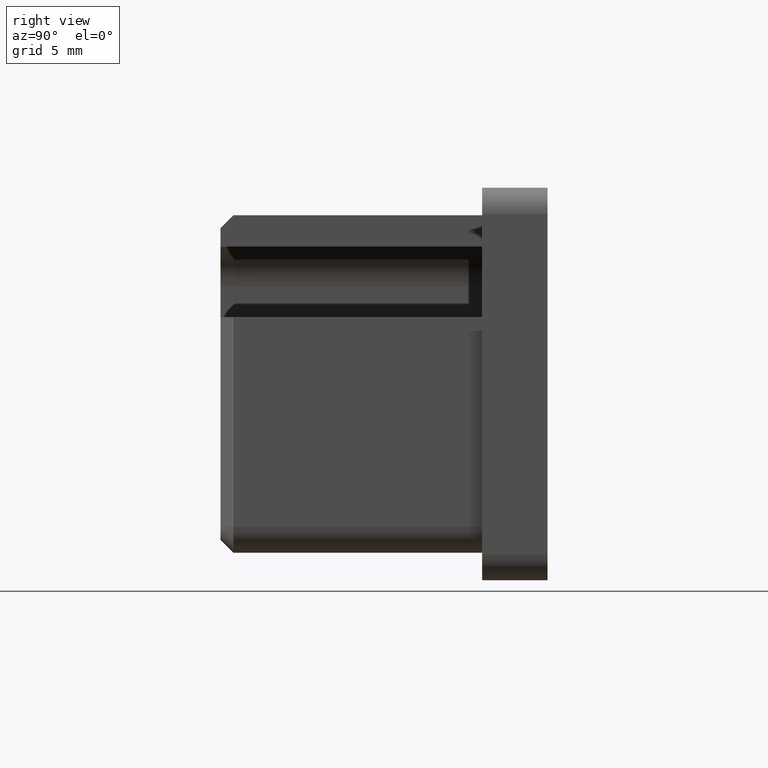
[diagram: clean part render]
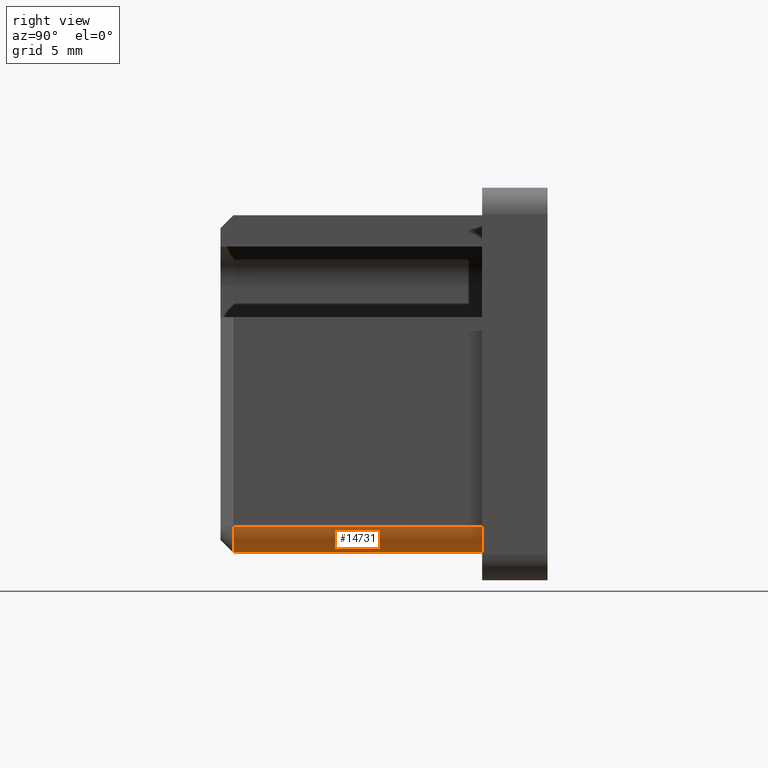
[diagram: same view with one face highlighted and labeled with its STEP entity id]
A machine part, right view. The second image highlights one B-rep face of the part: STEP entity #14731.
In plain terms, the highlighted cylindrical surface (edge-blend (fillet) strip) has radius 2 mm, axis along (0, 1, 0).
Its self-contained STEP definition (entity closure, byte-faithful):
#87 = AXIS2_PLACEMENT_3D ( 'NONE', #14909, #6436, #8950 ) ;
#180 = EDGE_CURVE ( 'NONE', #9260, #14171, #840, .T. ) ;
#266 = EDGE_CURVE ( 'NONE', #4078, #10976, #467, .T. ) ;
#467 = CIRCLE ( 'NONE', #1706, 2.000000000000000000 ) ;
#840 = CIRCLE ( 'NONE', #87, 2.000000000000000000 ) ;
#1670 = CARTESIAN_POINT ( 'NONE',  ( 17.90000000000000600, 0.0000000000000000000, -10.89999999999999700 ) ) ;
#1706 = AXIS2_PLACEMENT_3D ( 'NONE', #12662, #6838, #6692 ) ;
#2873 = CARTESIAN_POINT ( 'NONE',  ( 17.90000000000000600, -19.00000000000000000, -10.89999999999999700 ) ) ;
#3285 = AXIS2_PLACEMENT_3D ( 'NONE', #12084, #9626, #3637 ) ;
#3463 = EDGE_CURVE ( 'NONE', #14171, #10976, #11083, .T. ) ;
#3637 = DIRECTION ( 'NONE',  ( 0.0000000000000000000, 0.0000000000000000000, 1.000000000000000000 ) ) ;
#4019 = FACE_OUTER_BOUND ( 'NONE', #4924, .T. ) ;
#4078 = VERTEX_POINT ( 'NONE', #2873 ) ;
#4187 = CARTESIAN_POINT ( 'NONE',  ( 17.90000000000000600, -20.00000000000000000, -10.89999999999999700 ) ) ;
#4237 = EDGE_CURVE ( 'NONE', #4078, #9260, #10134, .T. ) ;
#4445 = ORIENTED_EDGE ( 'NONE', *, *, #4237, .F. ) ;
#4460 = CARTESIAN_POINT ( 'NONE',  ( 15.90000000000000400, -20.00000000000000000, -12.89999999999999700 ) ) ;
#4788 = CARTESIAN_POINT ( 'NONE',  ( 15.90000000000000400, -19.00000000000000000, -12.89999999999999700 ) ) ;
#4924 = EDGE_LOOP ( 'NONE', ( #4445, #11460, #7601, #9817 ) ) ;
#6436 = DIRECTION ( 'NONE',  ( 0.0000000000000000000, 1.000000000000000000, 0.0000000000000000000 ) ) ;
#6692 = DIRECTION ( 'NONE',  ( 0.0000000000000000000, 0.0000000000000000000, 1.000000000000000000 ) ) ;
#6838 = DIRECTION ( 'NONE',  ( 0.0000000000000000000, 1.000000000000000000, 0.0000000000000000000 ) ) ;
#6912 = VECTOR ( 'NONE', #11334, 1000.000000000000000 ) ;
#7110 = VECTOR ( 'NONE', #15296, 1000.000000000000000 ) ;
#7466 = CYLINDRICAL_SURFACE ( 'NONE', #3285, 2.000000000000000000 ) ;
#7601 = ORIENTED_EDGE ( 'NONE', *, *, #3463, .F. ) ;
#7657 = CARTESIAN_POINT ( 'NONE',  ( 15.90000000000000400, 0.0000000000000000000, -12.89999999999999700 ) ) ;
#8950 = DIRECTION ( 'NONE',  ( 0.0000000000000000000, 0.0000000000000000000, 1.000000000000000000 ) ) ;
#9260 = VERTEX_POINT ( 'NONE', #1670 ) ;
#9626 = DIRECTION ( 'NONE',  ( 0.0000000000000000000, 1.000000000000000000, 0.0000000000000000000 ) ) ;
#9817 = ORIENTED_EDGE ( 'NONE', *, *, #180, .F. ) ;
#10134 = LINE ( 'NONE', #4187, #6912 ) ;
#10976 = VERTEX_POINT ( 'NONE', #4788 ) ;
#11083 = LINE ( 'NONE', #4460, #7110 ) ;
#11334 = DIRECTION ( 'NONE',  ( 0.0000000000000000000, 1.000000000000000000, 0.0000000000000000000 ) ) ;
#11460 = ORIENTED_EDGE ( 'NONE', *, *, #266, .T. ) ;
#12084 = CARTESIAN_POINT ( 'NONE',  ( 15.90000000000000400, -20.00000000000000000, -10.89999999999999700 ) ) ;
#12662 = CARTESIAN_POINT ( 'NONE',  ( 15.90000000000000400, -19.00000000000000000, -10.89999999999999700 ) ) ;
#14171 = VERTEX_POINT ( 'NONE', #7657 ) ;
#14731 = ADVANCED_FACE ( 'NONE', ( #4019 ), #7466, .T. ) ;
#14909 = CARTESIAN_POINT ( 'NONE',  ( 15.90000000000000400, 0.0000000000000000000, -10.89999999999999700 ) ) ;
#15296 = DIRECTION ( 'NONE',  ( 0.0000000000000000000, -1.000000000000000000, -0.0000000000000000000 ) ) ;